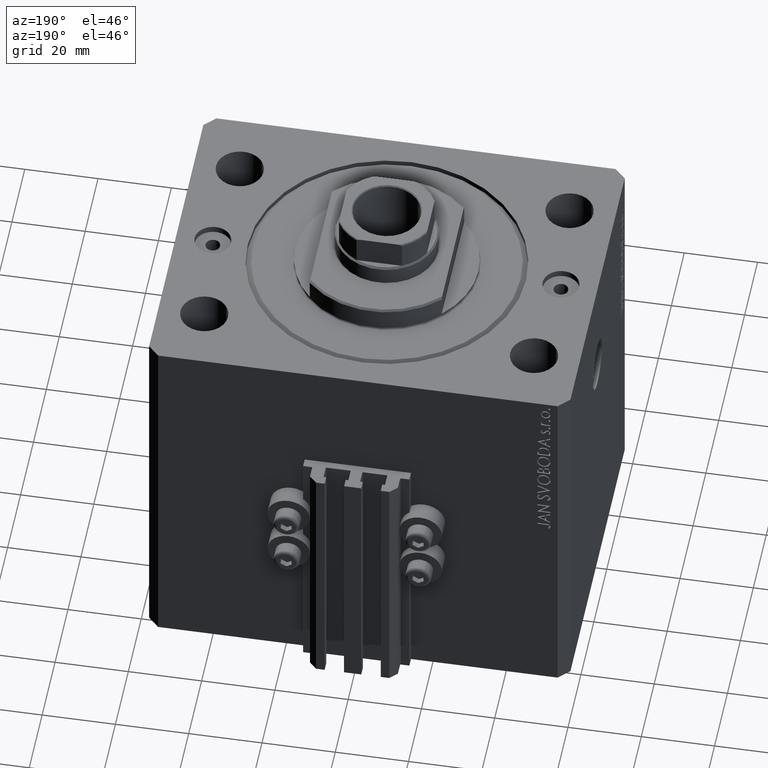
[diagram: clean part render]
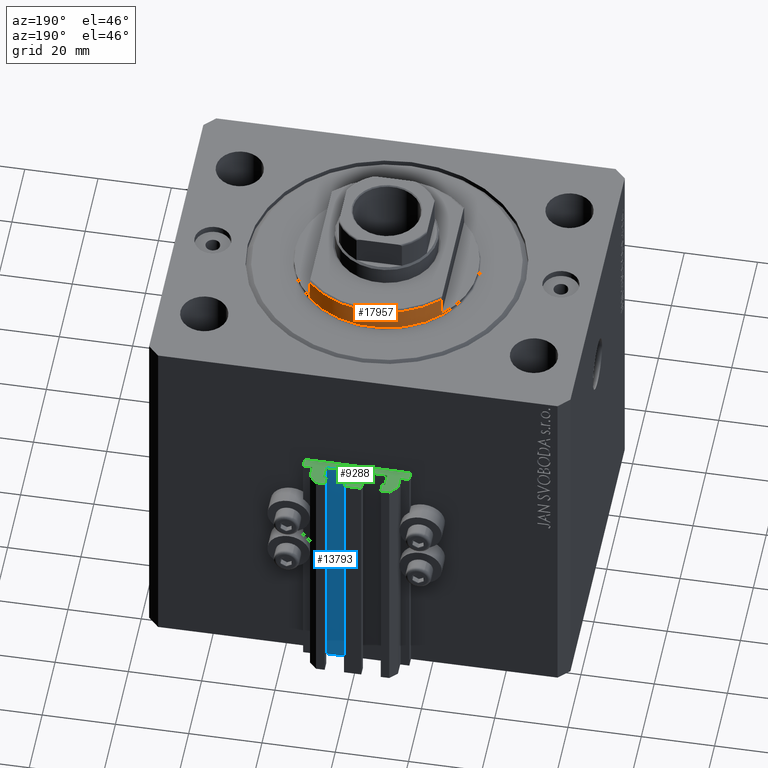
[diagram: same view with three faces highlighted in distinct colors, each labeled with its STEP entity id]
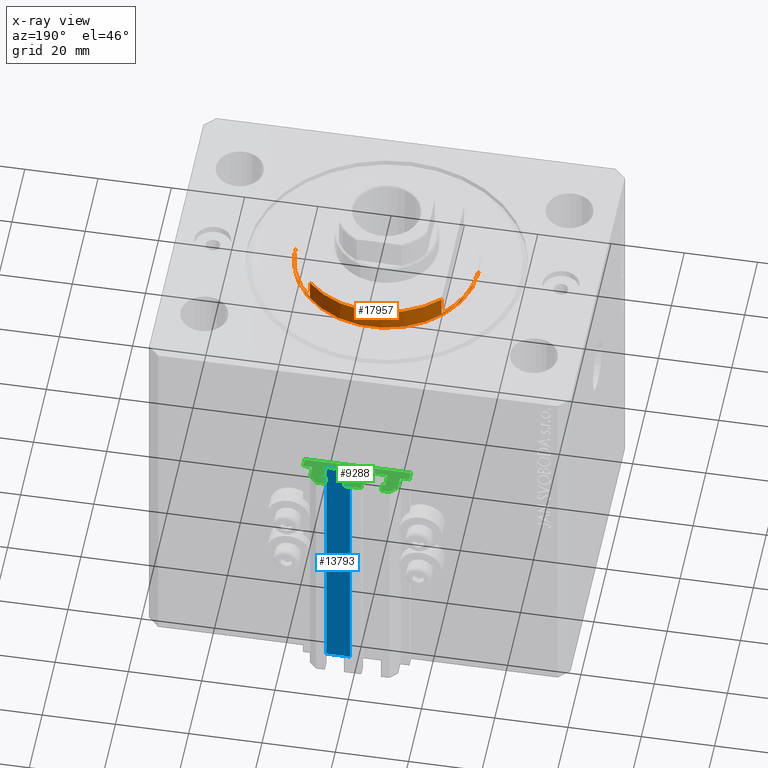
[diagram: x-ray of the same camera — body ghosted, the three highlighted faces saturated]
A machine part, auxiliary view with three faces highlighted in distinct colors.
The next image is the same camera in x-ray (body ghosted, the three faces saturated) — at least one of them is partly hidden behind the body in this view.
Their STEP definitions:

[orange] entity #17957 — the highlighted cylindrical surface (partial cylindrical patch) has radius 25 mm, axis along (0, 0, -1).
#851 = CARTESIAN_POINT ( 'NONE',  ( -25.00000000000000000, 3.061616997868383043E-15, -0.4999999999999995559 ) ) ;
#2798 = ORIENTED_EDGE ( 'NONE', *, *, #15707, .T. ) ;
#2951 = AXIS2_PLACEMENT_3D ( 'NONE', #38836, #41952, #38357 ) ;
#3749 = CIRCLE ( 'NONE', #2951, 25.00000000000000000 ) ;
#6209 = EDGE_CURVE ( 'NONE', #7485, #17169, #20021, .T. ) ;
#6448 = CARTESIAN_POINT ( 'NONE',  ( 25.00000000000000000, 0.000000000000000000, -7.000000000000000000 ) ) ;
#7159 = CARTESIAN_POINT ( 'NONE',  ( 0.000000000000000000, 0.000000000000000000, -1.000000000000000000 ) ) ;
#7485 = VERTEX_POINT ( 'NONE', #9749 ) ;
#8318 = VECTOR ( 'NONE', #34571, 1000.000000000000000 ) ;
#9592 = CYLINDRICAL_SURFACE ( 'NONE', #13247, 25.00000000000000000 ) ;
#9614 = VECTOR ( 'NONE', #9808, 1000.000000000000000 ) ;
#9749 = CARTESIAN_POINT ( 'NONE',  ( 18.00000000000000000, 17.34935157289748986, -6.499999999999965361 ) ) ;
#9808 = DIRECTION ( 'NONE',  ( -0.000000000000000000, -0.000000000000000000, 1.000000000000000000 ) ) ;
#10929 = VECTOR ( 'NONE', #35709, 1000.000000000000000 ) ;
#12769 = DIRECTION ( 'NONE',  ( 0.000000000000000000, 0.000000000000000000, 1.000000000000000000 ) ) ;
#13108 = CIRCLE ( 'NONE', #39793, 25.00000000000000000 ) ;
#13247 = AXIS2_PLACEMENT_3D ( 'NONE', #34637, #24596, #24128 ) ;
#13412 = ORIENTED_EDGE ( 'NONE', *, *, #34928, .T. ) ;
#13476 = EDGE_CURVE ( 'NONE', #17169, #36252, #13108, .T. ) ;
#15707 = EDGE_CURVE ( 'NONE', #23988, #22283, #21361, .T. ) ;
#15939 = DIRECTION ( 'NONE',  ( 0.000000000000000000, 0.000000000000000000, -1.000000000000000000 ) ) ;
#17169 = VERTEX_POINT ( 'NONE', #40566 ) ;
#17199 = CARTESIAN_POINT ( 'NONE',  ( 0.000000000000000000, 0.000000000000000000, -0.4999999999999995559 ) ) ;
#17771 = VECTOR ( 'NONE', #43313, 1000.000000000000000 ) ;
#17957 = ADVANCED_FACE ( 'NONE', ( #27947 ), #9592, .T. ) ;
#18085 = VERTEX_POINT ( 'NONE', #39398 ) ;
#20021 = LINE ( 'NONE', #27163, #8318 ) ;
#20526 = EDGE_CURVE ( 'NONE', #41473, #29071, #35476, .T. ) ;
#21361 = LINE ( 'NONE', #32812, #17771 ) ;
#21517 = EDGE_CURVE ( 'NONE', #7485, #41473, #26282, .T. ) ;
#22083 = ORIENTED_EDGE ( 'NONE', *, *, #20526, .T. ) ;
#22283 = VERTEX_POINT ( 'NONE', #851 ) ;
#22300 = ORIENTED_EDGE ( 'NONE', *, *, #6209, .F. ) ;
#22575 = AXIS2_PLACEMENT_3D ( 'NONE', #17199, #46546, #31521 ) ;
#23988 = VERTEX_POINT ( 'NONE', #40572 ) ;
#24081 = ORIENTED_EDGE ( 'NONE', *, *, #21517, .T. ) ;
#24128 = DIRECTION ( 'NONE',  ( 1.000000000000000000, 0.000000000000000000, 0.000000000000000000 ) ) ;
#24596 = DIRECTION ( 'NONE',  ( -0.000000000000000000, -0.000000000000000000, 1.000000000000000000 ) ) ;
#26282 = CIRCLE ( 'NONE', #41632, 25.00000000000000000 ) ;
#26923 = ORIENTED_EDGE ( 'NONE', *, *, #13476, .F. ) ;
#27163 = CARTESIAN_POINT ( 'NONE',  ( 18.00000000000000000, 17.34935157289747920, -7.000000000000000000 ) ) ;
#27690 = LINE ( 'NONE', #6448, #9614 ) ;
#27947 = FACE_OUTER_BOUND ( 'NONE', #36973, .T. ) ;
#29071 = VERTEX_POINT ( 'NONE', #40128 ) ;
#30962 = ORIENTED_EDGE ( 'NONE', *, *, #41766, .F. ) ;
#31521 = DIRECTION ( 'NONE',  ( 1.000000000000000000, 0.000000000000000000, 0.000000000000000000 ) ) ;
#32812 = CARTESIAN_POINT ( 'NONE',  ( -25.00000000000000000, 3.061616997868383043E-15, -7.000000000000000000 ) ) ;
#33623 = DIRECTION ( 'NONE',  ( -1.000000000000000000, 0.000000000000000000, 0.000000000000000000 ) ) ;
#34072 = ORIENTED_EDGE ( 'NONE', *, *, #34971, .F. ) ;
#34571 = DIRECTION ( 'NONE',  ( -0.000000000000000000, -0.000000000000000000, 1.000000000000000000 ) ) ;
#34637 = CARTESIAN_POINT ( 'NONE',  ( 0.000000000000000000, 0.000000000000000000, -7.000000000000000000 ) ) ;
#34928 = EDGE_CURVE ( 'NONE', #22283, #18085, #38552, .T. ) ;
#34971 = EDGE_CURVE ( 'NONE', #36252, #18085, #27690, .T. ) ;
#35476 = LINE ( 'NONE', #43102, #10929 ) ;
#35709 = DIRECTION ( 'NONE',  ( -0.000000000000000000, -0.000000000000000000, 1.000000000000000000 ) ) ;
#36252 = VERTEX_POINT ( 'NONE', #45269 ) ;
#36973 = EDGE_LOOP ( 'NONE', ( #30962, #2798, #13412, #34072, #26923, #22300, #24081, #22083 ) ) ;
#37599 = DIRECTION ( 'NONE',  ( -1.000000000000000000, 0.000000000000000000, 0.000000000000000000 ) ) ;
#38357 = DIRECTION ( 'NONE',  ( -1.000000000000000000, 0.000000000000000000, 0.000000000000000000 ) ) ;
#38552 = CIRCLE ( 'NONE', #22575, 25.00000000000000000 ) ;
#38836 = CARTESIAN_POINT ( 'NONE',  ( 0.000000000000000000, 0.000000000000000000, -1.000000000000000000 ) ) ;
#39398 = CARTESIAN_POINT ( 'NONE',  ( 25.00000000000000000, 0.000000000000000000, -0.4999999999999995559 ) ) ;
#39793 = AXIS2_PLACEMENT_3D ( 'NONE', #7159, #15939, #33623 ) ;
#40128 = CARTESIAN_POINT ( 'NONE',  ( -18.00000000000000000, 17.34935157289747920, -1.000000000000000000 ) ) ;
#40566 = CARTESIAN_POINT ( 'NONE',  ( 18.00000000000000000, 17.34935157289747920, -1.000000000000000000 ) ) ;
#40572 = CARTESIAN_POINT ( 'NONE',  ( -25.00000000000000000, 3.061616997868383043E-15, -1.000000000000000000 ) ) ;
#41473 = VERTEX_POINT ( 'NONE', #46297 ) ;
#41632 = AXIS2_PLACEMENT_3D ( 'NONE', #41897, #12769, #37599 ) ;
#41766 = EDGE_CURVE ( 'NONE', #23988, #29071, #3749, .T. ) ;
#41897 = CARTESIAN_POINT ( 'NONE',  ( 0.000000000000000000, 0.000000000000000000, -6.499999999999958256 ) ) ;
#41952 = DIRECTION ( 'NONE',  ( 0.000000000000000000, 0.000000000000000000, -1.000000000000000000 ) ) ;
#43102 = CARTESIAN_POINT ( 'NONE',  ( -18.00000000000000000, 17.34935157289747920, -7.000000000000000000 ) ) ;
#43313 = DIRECTION ( 'NONE',  ( -0.000000000000000000, -0.000000000000000000, 1.000000000000000000 ) ) ;
#45269 = CARTESIAN_POINT ( 'NONE',  ( 25.00000000000000000, 0.000000000000000000, -1.000000000000000000 ) ) ;
#46297 = CARTESIAN_POINT ( 'NONE',  ( -18.00000000000000000, 17.34935157289748986, -6.499999999999965361 ) ) ;
#46546 = DIRECTION ( 'NONE',  ( -0.000000000000000000, -0.000000000000000000, -1.000000000000000000 ) ) ;

[blue] entity #13793 — the highlighted planar face has unit normal (0, 1, 0).
#853 = VECTOR ( 'NONE', #16377, 1000.000000000000000 ) ;
#5444 = CARTESIAN_POINT ( 'NONE',  ( 8.199999999999999289, 46.99999999999998579, -105.0000000000000000 ) ) ;
#5702 = CARTESIAN_POINT ( 'NONE',  ( 1.800000000000000933, 46.99999999999998579, -105.0000000000000000 ) ) ;
#6132 = VECTOR ( 'NONE', #20244, 1000.000000000000000 ) ;
#6266 = EDGE_CURVE ( 'NONE', #12661, #15471, #20256, .T. ) ;
#7498 = EDGE_CURVE ( 'NONE', #37146, #24700, #27149, .T. ) ;
#10289 = CARTESIAN_POINT ( 'NONE',  ( 8.199999999999999289, 46.99999999999998579, -33.00000000000000000 ) ) ;
#10966 = EDGE_CURVE ( 'NONE', #24700, #15471, #11896, .T. ) ;
#11840 = DIRECTION ( 'NONE',  ( 0.000000000000000000, 0.000000000000000000, 1.000000000000000000 ) ) ;
#11896 = LINE ( 'NONE', #26450, #41243 ) ;
#12166 = EDGE_CURVE ( 'NONE', #37146, #12661, #22599, .T. ) ;
#12661 = VERTEX_POINT ( 'NONE', #5702 ) ;
#13265 = DIRECTION ( 'NONE',  ( -1.000000000000000000, 0.000000000000000000, 0.000000000000000000 ) ) ;
#13793 = ADVANCED_FACE ( 'NONE', ( #15195 ), #20363, .T. ) ;
#15195 = FACE_OUTER_BOUND ( 'NONE', #20655, .T. ) ;
#15471 = VERTEX_POINT ( 'NONE', #25494 ) ;
#16377 = DIRECTION ( 'NONE',  ( -1.000000000000000000, 0.000000000000000000, 0.000000000000000000 ) ) ;
#19379 = CARTESIAN_POINT ( 'NONE',  ( 8.199999999999999289, 46.99999999999998579, -105.0000000000000000 ) ) ;
#19783 = ORIENTED_EDGE ( 'NONE', *, *, #6266, .T. ) ;
#20244 = DIRECTION ( 'NONE',  ( 0.000000000000000000, 0.000000000000000000, 1.000000000000000000 ) ) ;
#20256 = LINE ( 'NONE', #42685, #22805 ) ;
#20363 = PLANE ( 'NONE',  #36790 ) ;
#20655 = EDGE_LOOP ( 'NONE', ( #23695, #25661, #21849, #19783 ) ) ;
#21849 = ORIENTED_EDGE ( 'NONE', *, *, #12166, .T. ) ;
#22599 = LINE ( 'NONE', #23291, #853 ) ;
#22805 = VECTOR ( 'NONE', #32173, 1000.000000000000000 ) ;
#23291 = CARTESIAN_POINT ( 'NONE',  ( 8.199999999999999289, 46.99999999999998579, -105.0000000000000000 ) ) ;
#23695 = ORIENTED_EDGE ( 'NONE', *, *, #10966, .F. ) ;
#24700 = VERTEX_POINT ( 'NONE', #10289 ) ;
#25494 = CARTESIAN_POINT ( 'NONE',  ( 1.800000000000000933, 46.99999999999998579, -33.00000000000000000 ) ) ;
#25661 = ORIENTED_EDGE ( 'NONE', *, *, #7498, .F. ) ;
#26450 = CARTESIAN_POINT ( 'NONE',  ( 8.199999999999999289, 46.99999999999998579, -33.00000000000000000 ) ) ;
#27149 = LINE ( 'NONE', #5444, #6132 ) ;
#29739 = DIRECTION ( 'NONE',  ( 0.000000000000000000, 1.000000000000000000, -0.000000000000000000 ) ) ;
#31101 = CARTESIAN_POINT ( 'NONE',  ( 8.199999999999999289, 46.99999999999998579, -105.0000000000000000 ) ) ;
#32173 = DIRECTION ( 'NONE',  ( 0.000000000000000000, 0.000000000000000000, 1.000000000000000000 ) ) ;
#36790 = AXIS2_PLACEMENT_3D ( 'NONE', #31101, #29739, #11840 ) ;
#37146 = VERTEX_POINT ( 'NONE', #19379 ) ;
#41243 = VECTOR ( 'NONE', #13265, 1000.000000000000000 ) ;
#42685 = CARTESIAN_POINT ( 'NONE',  ( 1.800000000000000933, 46.99999999999998579, -105.0000000000000000 ) ) ;

[green] entity #9288 — the highlighted planar face has unit normal (0, 0, 1).
#87 = LINE ( 'NONE', #14643, #12109 ) ;
#407 = VERTEX_POINT ( 'NONE', #36715 ) ;
#693 = VERTEX_POINT ( 'NONE', #42401 ) ;
#1130 = EDGE_CURVE ( 'NONE', #39227, #28891, #41579, .T. ) ;
#1153 = CARTESIAN_POINT ( 'NONE',  ( 7.649999999999998579, 50.60000000000000853, -33.00000000000000000 ) ) ;
#1434 = VECTOR ( 'NONE', #33484, 1000.000000000000000 ) ;
#1486 = EDGE_CURVE ( 'NONE', #24232, #12953, #16693, .T. ) ;
#1540 = LINE ( 'NONE', #34241, #26618 ) ;
#1610 = CARTESIAN_POINT ( 'NONE',  ( -2.350000000000003642, 53.00000000000000000, -33.00000000000000000 ) ) ;
#1769 = EDGE_CURVE ( 'NONE', #7203, #693, #87, .T. ) ;
#1835 = EDGE_CURVE ( 'NONE', #31073, #3258, #14872, .T. ) ;
#2366 = LINE ( 'NONE', #35535, #9123 ) ;
#2471 = EDGE_CURVE ( 'NONE', #10376, #42858, #1540, .T. ) ;
#2503 = DIRECTION ( 'NONE',  ( 0.000000000000000000, -1.000000000000000000, 0.000000000000000000 ) ) ;
#2673 = LINE ( 'NONE', #46356, #19506 ) ;
#2849 = DIRECTION ( 'NONE',  ( 0.000000000000000000, 0.000000000000000000, 1.000000000000000000 ) ) ;
#2905 = EDGE_CURVE ( 'NONE', #29470, #5733, #45172, .T. ) ;
#2907 = DIRECTION ( 'NONE',  ( 1.000000000000000000, 0.000000000000000000, 0.000000000000000000 ) ) ;
#3258 = VERTEX_POINT ( 'NONE', #36263 ) ;
#3420 = CARTESIAN_POINT ( 'NONE',  ( 8.200000000000001066, 50.39999999999999858, -33.00000000000000000 ) ) ;
#3480 = ORIENTED_EDGE ( 'NONE', *, *, #46831, .T. ) ;
#3538 = ORIENTED_EDGE ( 'NONE', *, *, #26288, .T. ) ;
#3729 = EDGE_CURVE ( 'NONE', #31185, #4518, #40494, .T. ) ;
#4128 = CARTESIAN_POINT ( 'NONE',  ( 12.20000000000000107, 47.70000000000000284, -33.00000000000000000 ) ) ;
#4149 = EDGE_CURVE ( 'NONE', #6832, #407, #32033, .T. ) ;
#4306 = DIRECTION ( 'NONE',  ( -1.000000000000000000, 0.000000000000000000, 0.000000000000000000 ) ) ;
#4417 = CIRCLE ( 'NONE', #46333, 0.1999999999999953204 ) ;
#4518 = VERTEX_POINT ( 'NONE', #44821 ) ;
#5028 = LINE ( 'NONE', #34146, #5251 ) ;
#5251 = VECTOR ( 'NONE', #38683, 1000.000000000000000 ) ;
#5435 = EDGE_LOOP ( 'NONE', ( #25950, #16373, #11624, #33599, #34157, #12555, #29906, #18541, #33007, #20933, #42992, #10651, #30241, #44573, #11155, #30070, #36105, #3480, #13452, #26885, #40960, #19491, #8653, #30541, #42172, #19734, #43237, #25258, #35912, #29982, #31815, #32026, #43168, #3538, #29358, #39802 ) ) ;
#5733 = VERTEX_POINT ( 'NONE', #6994 ) ;
#5864 = DIRECTION ( 'NONE',  ( -0.7071067811865472397, -0.7071067811865479058, 0.000000000000000000 ) ) ;
#5896 = DIRECTION ( 'NONE',  ( 0.000000000000000000, 1.000000000000000000, 0.000000000000000000 ) ) ;
#6027 = VECTOR ( 'NONE', #23670, 1000.000000000000000 ) ;
#6141 = LINE ( 'NONE', #19737, #18932 ) ;
#6240 = CARTESIAN_POINT ( 'NONE',  ( 12.00000000000000533, 47.70000000000000284, -33.00000000000000000 ) ) ;
#6242 = DIRECTION ( 'NONE',  ( 1.000000000000000000, 0.000000000000000000, -0.000000000000000000 ) ) ;
#6784 = CARTESIAN_POINT ( 'NONE',  ( -12.00000000000000000, 47.69999999999999574, -33.00000000000000000 ) ) ;
#6832 = VERTEX_POINT ( 'NONE', #6240 ) ;
#6854 = EDGE_CURVE ( 'NONE', #7430, #42121, #43219, .T. ) ;
#6994 = CARTESIAN_POINT ( 'NONE',  ( -8.199999999999997513, 46.99999999999999289, -33.00000000000000000 ) ) ;
#7082 = CARTESIAN_POINT ( 'NONE',  ( 14.49999999999999645, 45.00000000000000000, -33.00000000000000000 ) ) ;
#7113 = LINE ( 'NONE', #33341, #25102 ) ;
#7178 = EDGE_CURVE ( 'NONE', #42121, #33122, #2366, .T. ) ;
#7191 = PLANE ( 'NONE',  #38128 ) ;
#7203 = VERTEX_POINT ( 'NONE', #31716 ) ;
#7212 = CARTESIAN_POINT ( 'NONE',  ( 12.00000000000000178, 47.70000000000000284, -33.00000000000000000 ) ) ;
#7314 = DIRECTION ( 'NONE',  ( 1.000000000000000000, 0.000000000000000000, 0.000000000000000000 ) ) ;
#7430 = VERTEX_POINT ( 'NONE', #42605 ) ;
#8245 = EDGE_CURVE ( 'NONE', #9192, #34511, #9146, .T. ) ;
#8431 = CARTESIAN_POINT ( 'NONE',  ( -1.600000000000000533, 50.39999999999999858, -33.00000000000000000 ) ) ;
#8653 = ORIENTED_EDGE ( 'NONE', *, *, #11787, .F. ) ;
#8889 = DIRECTION ( 'NONE',  ( 0.000000000000000000, 0.000000000000000000, 1.000000000000000000 ) ) ;
#8899 = DIRECTION ( 'NONE',  ( 0.000000000000000000, 0.000000000000000000, 1.000000000000000000 ) ) ;
#9123 = VECTOR ( 'NONE', #31489, 1000.000000000000000 ) ;
#9146 = CIRCLE ( 'NONE', #33553, 0.2000000000000040079 ) ;
#9192 = VERTEX_POINT ( 'NONE', #31311 ) ;
#9288 = ADVANCED_FACE ( 'NONE', ( #39404 ), #7191, .T. ) ;
#9505 = CIRCLE ( 'NONE', #23208, 0.2000000000000033418 ) ;
#9541 = CARTESIAN_POINT ( 'NONE',  ( 1.599999999999997868, 47.19999999999998863, -33.00000000000000000 ) ) ;
#9600 = CARTESIAN_POINT ( 'NONE',  ( 2.349999999999999645, 53.00000000000000000, -33.00000000000000000 ) ) ;
#10204 = VERTEX_POINT ( 'NONE', #14894 ) ;
#10289 = CARTESIAN_POINT ( 'NONE',  ( 8.199999999999999289, 46.99999999999998579, -33.00000000000000000 ) ) ;
#10301 = EDGE_CURVE ( 'NONE', #13319, #37712, #39726, .T. ) ;
#10376 = VERTEX_POINT ( 'NONE', #14133 ) ;
#10389 = CARTESIAN_POINT ( 'NONE',  ( -1.600000000000000755, 47.19999999999998863, -33.00000000000000000 ) ) ;
#10423 = DIRECTION ( 'NONE',  ( 0.000000000000000000, 0.000000000000000000, 1.000000000000000000 ) ) ;
#10532 = DIRECTION ( 'NONE',  ( 0.000000000000000000, -1.000000000000000000, 0.000000000000000000 ) ) ;
#10651 = ORIENTED_EDGE ( 'NONE', *, *, #27202, .T. ) ;
#10803 = CARTESIAN_POINT ( 'NONE',  ( -8.199999999999997513, 47.19999999999998863, -33.00000000000000000 ) ) ;
#10966 = EDGE_CURVE ( 'NONE', #24700, #15471, #11896, .T. ) ;
#11155 = ORIENTED_EDGE ( 'NONE', *, *, #31151, .F. ) ;
#11224 = CARTESIAN_POINT ( 'NONE',  ( -12.00000000000000000, 50.99999999999999289, -33.00000000000000000 ) ) ;
#11261 = DIRECTION ( 'NONE',  ( 1.000000000000000000, 0.000000000000000000, 0.000000000000000000 ) ) ;
#11574 = CARTESIAN_POINT ( 'NONE',  ( -7.650000000000002132, 52.99999999999999289, -33.00000000000000000 ) ) ;
#11624 = ORIENTED_EDGE ( 'NONE', *, *, #43046, .T. ) ;
#11787 = EDGE_CURVE ( 'NONE', #27780, #3258, #21464, .T. ) ;
#11896 = LINE ( 'NONE', #26450, #41243 ) ;
#11930 = LINE ( 'NONE', #30532, #42440 ) ;
#12109 = VECTOR ( 'NONE', #43535, 1000.000000000000000 ) ;
#12179 = VECTOR ( 'NONE', #10532, 1000.000000000000000 ) ;
#12462 = CARTESIAN_POINT ( 'NONE',  ( -1.800000000000000933, 46.99999999999999289, -33.00000000000000000 ) ) ;
#12555 = ORIENTED_EDGE ( 'NONE', *, *, #4149, .T. ) ;
#12953 = VERTEX_POINT ( 'NONE', #16779 ) ;
#13265 = DIRECTION ( 'NONE',  ( -1.000000000000000000, 0.000000000000000000, 0.000000000000000000 ) ) ;
#13319 = VERTEX_POINT ( 'NONE', #21236 ) ;
#13452 = ORIENTED_EDGE ( 'NONE', *, *, #19641, .T. ) ;
#13913 = DIRECTION ( 'NONE',  ( 0.000000000000000000, 0.000000000000000000, 1.000000000000000000 ) ) ;
#14059 = CARTESIAN_POINT ( 'NONE',  ( -1.800000000000000933, 47.19999999999998863, -33.00000000000000000 ) ) ;
#14133 = CARTESIAN_POINT ( 'NONE',  ( -8.399999999999996803, 47.19999999999998863, -33.00000000000000000 ) ) ;
#14453 = DIRECTION ( 'NONE',  ( 0.000000000000000000, 1.000000000000000000, 0.000000000000000000 ) ) ;
#14642 = DIRECTION ( 'NONE',  ( 0.000000000000000000, 0.000000000000000000, 1.000000000000000000 ) ) ;
#14643 = CARTESIAN_POINT ( 'NONE',  ( 14.49999999999999645, 47.50000000000001421, -33.00000000000000000 ) ) ;
#14872 = LINE ( 'NONE', #37531, #1434 ) ;
#14894 = CARTESIAN_POINT ( 'NONE',  ( 8.400000000000000355, 47.19999999999998863, -33.00000000000000000 ) ) ;
#15210 = VERTEX_POINT ( 'NONE', #17624 ) ;
#15412 = DIRECTION ( 'NONE',  ( 1.000000000000000000, -1.261617073437685503E-14, 0.000000000000000000 ) ) ;
#15471 = VERTEX_POINT ( 'NONE', #25494 ) ;
#15806 = CARTESIAN_POINT ( 'NONE',  ( 8.199999999999999289, 47.19999999999998863, -33.00000000000000000 ) ) ;
#15834 = DIRECTION ( 'NONE',  ( -1.000000000000000000, 0.000000000000000000, 0.000000000000000000 ) ) ;
#15868 = EDGE_CURVE ( 'NONE', #27780, #23467, #41132, .T. ) ;
#16118 = AXIS2_PLACEMENT_3D ( 'NONE', #23112, #23588, #26458 ) ;
#16373 = ORIENTED_EDGE ( 'NONE', *, *, #7178, .T. ) ;
#16475 = AXIS2_PLACEMENT_3D ( 'NONE', #15806, #8889, #30604 ) ;
#16523 = VECTOR ( 'NONE', #2503, 1000.000000000000000 ) ;
#16693 = CIRCLE ( 'NONE', #37263, 0.2000000000000033418 ) ;
#16779 = CARTESIAN_POINT ( 'NONE',  ( 1.600000000000000533, 50.39999999999999858, -33.00000000000000000 ) ) ;
#16945 = VECTOR ( 'NONE', #15834, 1000.000000000000000 ) ;
#17114 = VERTEX_POINT ( 'NONE', #1153 ) ;
#17151 = VERTEX_POINT ( 'NONE', #11224 ) ;
#17254 = CARTESIAN_POINT ( 'NONE',  ( 14.49999999999999645, 45.00000000000000000, -33.00000000000000000 ) ) ;
#17624 = CARTESIAN_POINT ( 'NONE',  ( 7.649999999999998579, 53.00000000000000711, -33.00000000000000000 ) ) ;
#17722 = DIRECTION ( 'NONE',  ( 0.000000000000000000, 1.000000000000000000, 0.000000000000000000 ) ) ;
#17852 = LINE ( 'NONE', #25249, #19575 ) ;
#17934 = CARTESIAN_POINT ( 'NONE',  ( -8.199999999999997513, 50.39999999999998437, -33.00000000000000000 ) ) ;
#17977 = DIRECTION ( 'NONE',  ( 1.000000000000000000, 0.000000000000000000, 0.000000000000000000 ) ) ;
#18541 = ORIENTED_EDGE ( 'NONE', *, *, #47049, .T. ) ;
#18609 = CARTESIAN_POINT ( 'NONE',  ( 9.999999999999998224, 53.00000000000000711, -33.00000000000000000 ) ) ;
#18666 = CIRCLE ( 'NONE', #38488, 0.1999999999999994282 ) ;
#18813 = EDGE_CURVE ( 'NONE', #19569, #17151, #43022, .T. ) ;
#18932 = VECTOR ( 'NONE', #5896, 1000.000000000000000 ) ;
#19161 = DIRECTION ( 'NONE',  ( 1.807003620809174632E-16, -1.000000000000000000, 0.000000000000000000 ) ) ;
#19180 = CARTESIAN_POINT ( 'NONE',  ( -8.400000000000000355, 50.39999999999998437, -33.00000000000000000 ) ) ;
#19491 = ORIENTED_EDGE ( 'NONE', *, *, #1835, .T. ) ;
#19506 = VECTOR ( 'NONE', #11261, 1000.000000000000000 ) ;
#19569 = VERTEX_POINT ( 'NONE', #41924 ) ;
#19575 = VECTOR ( 'NONE', #21676, 1000.000000000000000 ) ;
#19641 = EDGE_CURVE ( 'NONE', #41480, #28891, #23532, .T. ) ;
#19734 = ORIENTED_EDGE ( 'NONE', *, *, #2905, .T. ) ;
#19737 = CARTESIAN_POINT ( 'NONE',  ( 1.600000000000000533, 47.19999999999998863, -33.00000000000000000 ) ) ;
#19952 = CARTESIAN_POINT ( 'NONE',  ( -10.00000000000000000, 52.99999999999999289, -33.00000000000000000 ) ) ;
#20145 = CARTESIAN_POINT ( 'NONE',  ( 9.999999999999998224, 53.00000000000000711, -33.00000000000000000 ) ) ;
#20639 = LINE ( 'NONE', #42598, #16523 ) ;
#20933 = ORIENTED_EDGE ( 'NONE', *, *, #34487, .T. ) ;
#21112 = EDGE_CURVE ( 'NONE', #29470, #23467, #18666, .T. ) ;
#21236 = CARTESIAN_POINT ( 'NONE',  ( -12.20000000000000107, 47.49999999999998579, -33.00000000000000000 ) ) ;
#21419 = AXIS2_PLACEMENT_3D ( 'NONE', #41603, #8899, #38010 ) ;
#21464 = CIRCLE ( 'NONE', #16118, 0.2000000000000031197 ) ;
#21676 = DIRECTION ( 'NONE',  ( -5.421010862427508365E-16, -1.000000000000000000, 0.000000000000000000 ) ) ;
#21883 = VECTOR ( 'NONE', #19161, 1000.000000000000000 ) ;
#23112 = CARTESIAN_POINT ( 'NONE',  ( -1.800000000000000933, 50.39999999999999858, -33.00000000000000000 ) ) ;
#23208 = AXIS2_PLACEMENT_3D ( 'NONE', #39477, #46636, #28487 ) ;
#23467 = VERTEX_POINT ( 'NONE', #10389 ) ;
#23503 = CARTESIAN_POINT ( 'NONE',  ( -14.50000000000000000, 45.00000000000000000, -33.00000000000000000 ) ) ;
#23532 = LINE ( 'NONE', #36419, #38336 ) ;
#23588 = DIRECTION ( 'NONE',  ( 0.000000000000000000, 0.000000000000000000, 1.000000000000000000 ) ) ;
#23670 = DIRECTION ( 'NONE',  ( 1.000000000000000000, 0.000000000000000000, 0.000000000000000000 ) ) ;
#24232 = VERTEX_POINT ( 'NONE', #36879 ) ;
#24606 = LINE ( 'NONE', #36075, #40172 ) ;
#24700 = VERTEX_POINT ( 'NONE', #10289 ) ;
#24837 = CARTESIAN_POINT ( 'NONE',  ( 12.20000000000000107, 47.70000000000000284, -33.00000000000000000 ) ) ;
#25102 = VECTOR ( 'NONE', #25942, 1000.000000000000000 ) ;
#25249 = CARTESIAN_POINT ( 'NONE',  ( 8.400000000000000355, 50.39999999999999858, -33.00000000000000000 ) ) ;
#25258 = ORIENTED_EDGE ( 'NONE', *, *, #2471, .T. ) ;
#25494 = CARTESIAN_POINT ( 'NONE',  ( 1.800000000000000933, 46.99999999999998579, -33.00000000000000000 ) ) ;
#25736 = CARTESIAN_POINT ( 'NONE',  ( 2.349999999999999645, 50.60000000000000142, -33.00000000000000000 ) ) ;
#25853 = CARTESIAN_POINT ( 'NONE',  ( -2.350000000000003642, 53.00000000000000000, -33.00000000000000000 ) ) ;
#25942 = DIRECTION ( 'NONE',  ( 0.000000000000000000, -1.000000000000000000, 0.000000000000000000 ) ) ;
#25950 = ORIENTED_EDGE ( 'NONE', *, *, #6854, .T. ) ;
#26288 = EDGE_CURVE ( 'NONE', #17151, #37712, #20639, .T. ) ;
#26450 = CARTESIAN_POINT ( 'NONE',  ( 8.199999999999999289, 46.99999999999998579, -33.00000000000000000 ) ) ;
#26458 = DIRECTION ( 'NONE',  ( 1.000000000000000000, 0.000000000000000000, 0.000000000000000000 ) ) ;
#26512 = AXIS2_PLACEMENT_3D ( 'NONE', #17934, #32487, #29147 ) ;
#26618 = VECTOR ( 'NONE', #44990, 1000.000000000000000 ) ;
#26885 = ORIENTED_EDGE ( 'NONE', *, *, #1130, .F. ) ;
#27202 = EDGE_CURVE ( 'NONE', #9192, #10204, #17852, .T. ) ;
#27242 = CARTESIAN_POINT ( 'NONE',  ( -2.350000000000003642, 53.00000000000000000, -33.00000000000000000 ) ) ;
#27682 = EDGE_CURVE ( 'NONE', #43104, #19569, #37338, .T. ) ;
#27780 = VERTEX_POINT ( 'NONE', #44273 ) ;
#28487 = DIRECTION ( 'NONE',  ( 1.000000000000000000, 0.000000000000000000, 0.000000000000000000 ) ) ;
#28891 = VERTEX_POINT ( 'NONE', #9600 ) ;
#28955 = VECTOR ( 'NONE', #15412, 1000.000000000000000 ) ;
#29033 = CARTESIAN_POINT ( 'NONE',  ( 1.800000000000000933, 50.39999999999999858, -33.00000000000000000 ) ) ;
#29147 = DIRECTION ( 'NONE',  ( 1.000000000000000000, 0.000000000000000000, 0.000000000000000000 ) ) ;
#29198 = DIRECTION ( 'NONE',  ( 1.000000000000000000, 0.000000000000000000, 0.000000000000000000 ) ) ;
#29358 = ORIENTED_EDGE ( 'NONE', *, *, #10301, .F. ) ;
#29391 = CIRCLE ( 'NONE', #16475, 0.2000000000000022593 ) ;
#29470 = VERTEX_POINT ( 'NONE', #44159 ) ;
#29627 = CARTESIAN_POINT ( 'NONE',  ( -7.650000000000002132, 52.99999999999999289, -33.00000000000000000 ) ) ;
#29906 = ORIENTED_EDGE ( 'NONE', *, *, #38367, .T. ) ;
#29982 = ORIENTED_EDGE ( 'NONE', *, *, #3729, .T. ) ;
#30070 = ORIENTED_EDGE ( 'NONE', *, *, #40843, .T. ) ;
#30241 = ORIENTED_EDGE ( 'NONE', *, *, #34372, .F. ) ;
#30532 = CARTESIAN_POINT ( 'NONE',  ( -12.20000000000000107, 47.49999999999998579, -33.00000000000000000 ) ) ;
#30541 = ORIENTED_EDGE ( 'NONE', *, *, #15868, .T. ) ;
#30604 = DIRECTION ( 'NONE',  ( 1.000000000000000000, 0.000000000000000000, 0.000000000000000000 ) ) ;
#31073 = VERTEX_POINT ( 'NONE', #39531 ) ;
#31151 = EDGE_CURVE ( 'NONE', #32653, #15471, #9505, .T. ) ;
#31185 = VERTEX_POINT ( 'NONE', #35898 ) ;
#31206 = CARTESIAN_POINT ( 'NONE',  ( 12.00000000000000000, 51.00000000000000711, -33.00000000000000000 ) ) ;
#31311 = CARTESIAN_POINT ( 'NONE',  ( 8.400000000000003908, 50.39999999999999858, -33.00000000000000000 ) ) ;
#31489 = DIRECTION ( 'NONE',  ( 1.000000000000000000, 0.000000000000000000, 0.000000000000000000 ) ) ;
#31716 = CARTESIAN_POINT ( 'NONE',  ( 14.49999999999999645, 47.50000000000001421, -33.00000000000000000 ) ) ;
#31803 = VECTOR ( 'NONE', #38119, 1000.000000000000114 ) ;
#31815 = ORIENTED_EDGE ( 'NONE', *, *, #37307, .T. ) ;
#32026 = ORIENTED_EDGE ( 'NONE', *, *, #27682, .T. ) ;
#32033 = LINE ( 'NONE', #7212, #38902 ) ;
#32487 = DIRECTION ( 'NONE',  ( 0.000000000000000000, 0.000000000000000000, 1.000000000000000000 ) ) ;
#32653 = VERTEX_POINT ( 'NONE', #9541 ) ;
#32747 = DIRECTION ( 'NONE',  ( -5.256737805990328981E-16, 1.000000000000000000, 0.000000000000000000 ) ) ;
#33007 = ORIENTED_EDGE ( 'NONE', *, *, #43661, .T. ) ;
#33122 = VERTEX_POINT ( 'NONE', #7082 ) ;
#33342 = AXIS2_PLACEMENT_3D ( 'NONE', #10803, #39914, #2907 ) ;
#33341 = CARTESIAN_POINT ( 'NONE',  ( 7.649999999999998579, 53.00000000000000711, -33.00000000000000000 ) ) ;
#33484 = DIRECTION ( 'NONE',  ( 1.000000000000000000, 1.261617073437673039E-14, 0.000000000000000000 ) ) ;
#33553 = AXIS2_PLACEMENT_3D ( 'NONE', #3420, #13913, #17977 ) ;
#33599 = ORIENTED_EDGE ( 'NONE', *, *, #1769, .T. ) ;
#33947 = LINE ( 'NONE', #25853, #21883 ) ;
#34146 = CARTESIAN_POINT ( 'NONE',  ( 1.800000000000000933, 50.60000000000000853, -33.00000000000000000 ) ) ;
#34157 = ORIENTED_EDGE ( 'NONE', *, *, #40201, .F. ) ;
#34205 = VECTOR ( 'NONE', #36047, 1000.000000000000000 ) ;
#34241 = CARTESIAN_POINT ( 'NONE',  ( -8.399999999999996803, 47.19999999999998863, -33.00000000000000000 ) ) ;
#34372 = EDGE_CURVE ( 'NONE', #24700, #10204, #29391, .T. ) ;
#34487 = EDGE_CURVE ( 'NONE', #17114, #34511, #2673, .T. ) ;
#34511 = VERTEX_POINT ( 'NONE', #36791 ) ;
#34523 = VECTOR ( 'NONE', #40441, 1000.000000000000000 ) ;
#35535 = CARTESIAN_POINT ( 'NONE',  ( -14.50000000000000000, 45.00000000000000000, -33.00000000000000000 ) ) ;
#35623 = CIRCLE ( 'NONE', #33342, 0.1999999999999987899 ) ;
#35898 = CARTESIAN_POINT ( 'NONE',  ( -8.199999999999999289, 50.59999999999999432, -33.00000000000000000 ) ) ;
#35912 = ORIENTED_EDGE ( 'NONE', *, *, #40428, .F. ) ;
#36047 = DIRECTION ( 'NONE',  ( -1.000000000000000000, 0.000000000000000000, 0.000000000000000000 ) ) ;
#36075 = CARTESIAN_POINT ( 'NONE',  ( -7.650000000000002132, 50.59999999999999432, -33.00000000000000000 ) ) ;
#36105 = ORIENTED_EDGE ( 'NONE', *, *, #1486, .F. ) ;
#36263 = CARTESIAN_POINT ( 'NONE',  ( -1.800000000000000933, 50.60000000000000853, -33.00000000000000000 ) ) ;
#36419 = CARTESIAN_POINT ( 'NONE',  ( 2.349999999999999645, 50.60000000000000142, -33.00000000000000000 ) ) ;
#36510 = VERTEX_POINT ( 'NONE', #20145 ) ;
#36523 = LINE ( 'NONE', #18609, #34205 ) ;
#36715 = CARTESIAN_POINT ( 'NONE',  ( 12.00000000000000000, 51.00000000000000711, -33.00000000000000000 ) ) ;
#36791 = CARTESIAN_POINT ( 'NONE',  ( 8.200000000000001066, 50.60000000000000853, -33.00000000000000000 ) ) ;
#36879 = CARTESIAN_POINT ( 'NONE',  ( 1.800000000000000933, 50.60000000000000853, -33.00000000000000000 ) ) ;
#36921 = EDGE_CURVE ( 'NONE', #13319, #7430, #11930, .T. ) ;
#37263 = AXIS2_PLACEMENT_3D ( 'NONE', #29033, #10423, #7314 ) ;
#37305 = VECTOR ( 'NONE', #41826, 1000.000000000000000 ) ;
#37307 = EDGE_CURVE ( 'NONE', #4518, #43104, #24606, .T. ) ;
#37338 = LINE ( 'NONE', #11574, #16945 ) ;
#37531 = CARTESIAN_POINT ( 'NONE',  ( -2.350000000000003197, 50.60000000000000142, -33.00000000000000000 ) ) ;
#37712 = VERTEX_POINT ( 'NONE', #6784 ) ;
#37757 = EDGE_CURVE ( 'NONE', #39227, #31073, #33947, .T. ) ;
#38010 = DIRECTION ( 'NONE',  ( 1.000000000000000000, 0.000000000000000000, 0.000000000000000000 ) ) ;
#38119 = DIRECTION ( 'NONE',  ( -0.7071067811865474617, 0.7071067811865474617, 0.000000000000000000 ) ) ;
#38128 = AXIS2_PLACEMENT_3D ( 'NONE', #24837, #43474, #6242 ) ;
#38336 = VECTOR ( 'NONE', #14453, 1000.000000000000000 ) ;
#38356 = LINE ( 'NONE', #31206, #31803 ) ;
#38367 = EDGE_CURVE ( 'NONE', #407, #36510, #38356, .T. ) ;
#38488 = AXIS2_PLACEMENT_3D ( 'NONE', #14059, #2849, #38664 ) ;
#38664 = DIRECTION ( 'NONE',  ( 1.000000000000000000, 0.000000000000000000, 0.000000000000000000 ) ) ;
#38683 = DIRECTION ( 'NONE',  ( 1.000000000000000000, -1.261617073437681085E-14, 0.000000000000000000 ) ) ;
#38692 = EDGE_CURVE ( 'NONE', #10376, #5733, #35623, .T. ) ;
#38902 = VECTOR ( 'NONE', #32747, 1000.000000000000000 ) ;
#39227 = VERTEX_POINT ( 'NONE', #1610 ) ;
#39404 = FACE_OUTER_BOUND ( 'NONE', #5435, .T. ) ;
#39477 = CARTESIAN_POINT ( 'NONE',  ( 1.800000000000000933, 47.19999999999998863, -33.00000000000000000 ) ) ;
#39531 = CARTESIAN_POINT ( 'NONE',  ( -2.350000000000003197, 50.60000000000000142, -33.00000000000000000 ) ) ;
#39726 = CIRCLE ( 'NONE', #21419, 0.2000000000000040079 ) ;
#39802 = ORIENTED_EDGE ( 'NONE', *, *, #36921, .T. ) ;
#39914 = DIRECTION ( 'NONE',  ( 0.000000000000000000, 0.000000000000000000, 1.000000000000000000 ) ) ;
#40172 = VECTOR ( 'NONE', #46810, 1000.000000000000000 ) ;
#40201 = EDGE_CURVE ( 'NONE', #6832, #693, #4417, .T. ) ;
#40428 = EDGE_CURVE ( 'NONE', #31185, #42858, #45588, .T. ) ;
#40441 = DIRECTION ( 'NONE',  ( -6.776263578034385456E-17, -1.000000000000000000, 0.000000000000000000 ) ) ;
#40494 = LINE ( 'NONE', #44305, #28955 ) ;
#40843 = EDGE_CURVE ( 'NONE', #32653, #12953, #6141, .T. ) ;
#40960 = ORIENTED_EDGE ( 'NONE', *, *, #37757, .T. ) ;
#41132 = LINE ( 'NONE', #8431, #34523 ) ;
#41243 = VECTOR ( 'NONE', #13265, 1000.000000000000000 ) ;
#41469 = VECTOR ( 'NONE', #5864, 999.9999999999998863 ) ;
#41480 = VERTEX_POINT ( 'NONE', #25736 ) ;
#41579 = LINE ( 'NONE', #27242, #6027 ) ;
#41603 = CARTESIAN_POINT ( 'NONE',  ( -12.20000000000000107, 47.69999999999999574, -33.00000000000000000 ) ) ;
#41826 = DIRECTION ( 'NONE',  ( -1.000000000000000000, 0.000000000000000000, 0.000000000000000000 ) ) ;
#41924 = CARTESIAN_POINT ( 'NONE',  ( -10.00000000000000000, 52.99999999999999289, -33.00000000000000000 ) ) ;
#42121 = VERTEX_POINT ( 'NONE', #23503 ) ;
#42172 = ORIENTED_EDGE ( 'NONE', *, *, #21112, .F. ) ;
#42401 = CARTESIAN_POINT ( 'NONE',  ( 12.20000000000000107, 47.50000000000001421, -33.00000000000000000 ) ) ;
#42440 = VECTOR ( 'NONE', #4306, 1000.000000000000000 ) ;
#42598 = CARTESIAN_POINT ( 'NONE',  ( -12.00000000000000000, 50.99999999999999289, -33.00000000000000000 ) ) ;
#42605 = CARTESIAN_POINT ( 'NONE',  ( -14.50000000000000000, 47.49999999999998579, -33.00000000000000000 ) ) ;
#42858 = VERTEX_POINT ( 'NONE', #19180 ) ;
#42992 = ORIENTED_EDGE ( 'NONE', *, *, #8245, .F. ) ;
#43022 = LINE ( 'NONE', #19952, #41469 ) ;
#43046 = EDGE_CURVE ( 'NONE', #33122, #7203, #46601, .T. ) ;
#43104 = VERTEX_POINT ( 'NONE', #29627 ) ;
#43168 = ORIENTED_EDGE ( 'NONE', *, *, #18813, .T. ) ;
#43219 = LINE ( 'NONE', #46336, #12179 ) ;
#43237 = ORIENTED_EDGE ( 'NONE', *, *, #38692, .F. ) ;
#43474 = DIRECTION ( 'NONE',  ( 0.000000000000000000, 0.000000000000000000, 1.000000000000000000 ) ) ;
#43535 = DIRECTION ( 'NONE',  ( -1.000000000000000000, 0.000000000000000000, 0.000000000000000000 ) ) ;
#43661 = EDGE_CURVE ( 'NONE', #15210, #17114, #7113, .T. ) ;
#44159 = CARTESIAN_POINT ( 'NONE',  ( -1.800000000000000933, 46.99999999999999289, -33.00000000000000000 ) ) ;
#44273 = CARTESIAN_POINT ( 'NONE',  ( -1.599999999999997868, 50.39999999999999858, -33.00000000000000000 ) ) ;
#44305 = CARTESIAN_POINT ( 'NONE',  ( -8.199999999999999289, 50.60000000000000142, -33.00000000000000000 ) ) ;
#44573 = ORIENTED_EDGE ( 'NONE', *, *, #10966, .T. ) ;
#44821 = CARTESIAN_POINT ( 'NONE',  ( -7.650000000000002132, 50.59999999999999432, -33.00000000000000000 ) ) ;
#44990 = DIRECTION ( 'NONE',  ( -1.084202172485506406E-15, 1.000000000000000000, 0.000000000000000000 ) ) ;
#45172 = LINE ( 'NONE', #12462, #37305 ) ;
#45588 = CIRCLE ( 'NONE', #26512, 0.2000000000000074496 ) ;
#46333 = AXIS2_PLACEMENT_3D ( 'NONE', #4128, #14642, #29198 ) ;
#46336 = CARTESIAN_POINT ( 'NONE',  ( -14.50000000000000000, 47.49999999999998579, -33.00000000000000000 ) ) ;
#46356 = CARTESIAN_POINT ( 'NONE',  ( 7.649999999999998579, 50.60000000000000853, -33.00000000000000000 ) ) ;
#46421 = VECTOR ( 'NONE', #17722, 1000.000000000000000 ) ;
#46601 = LINE ( 'NONE', #17254, #46421 ) ;
#46636 = DIRECTION ( 'NONE',  ( 0.000000000000000000, 0.000000000000000000, 1.000000000000000000 ) ) ;
#46810 = DIRECTION ( 'NONE',  ( 0.000000000000000000, 1.000000000000000000, 0.000000000000000000 ) ) ;
#46831 = EDGE_CURVE ( 'NONE', #24232, #41480, #5028, .T. ) ;
#47049 = EDGE_CURVE ( 'NONE', #36510, #15210, #36523, .T. ) ;